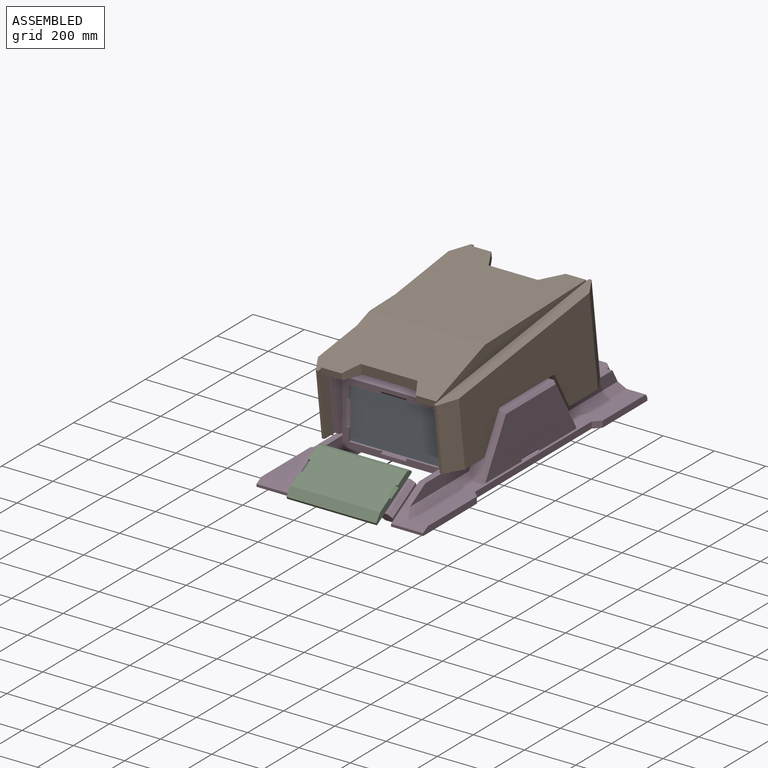
[diagram: assembled view]
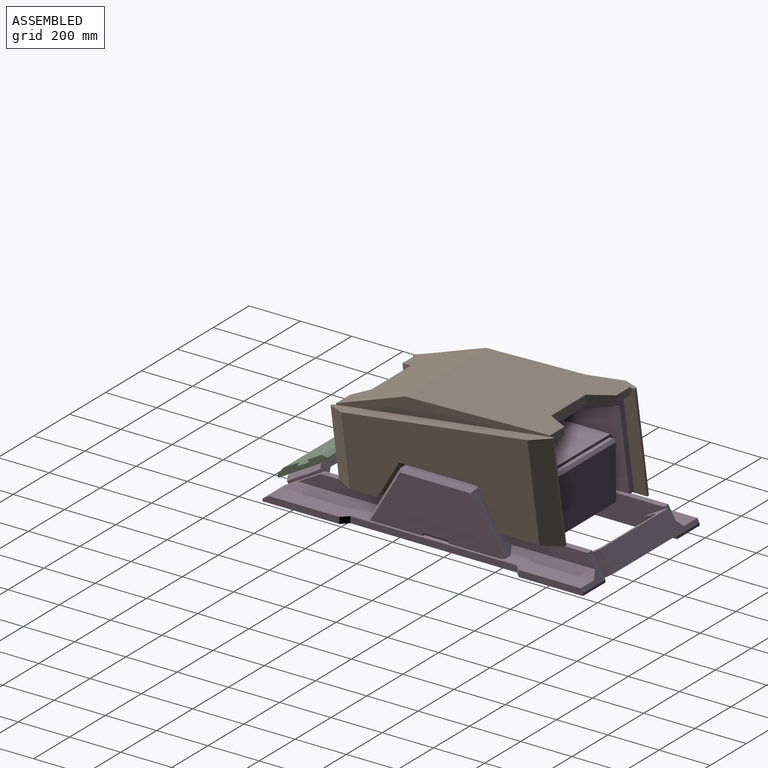
[diagram: assembled view, second angle]
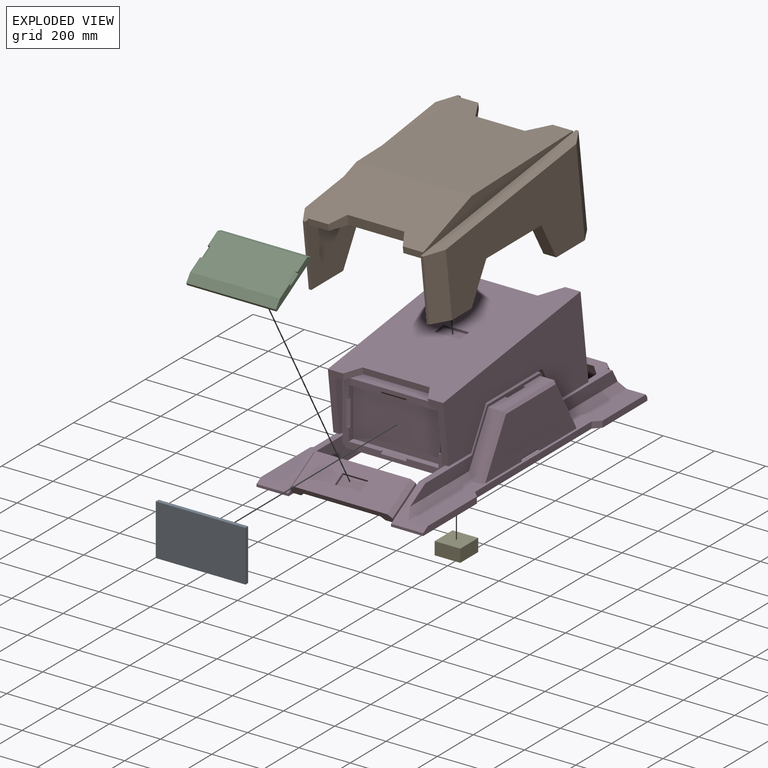
[diagram: exploded view]
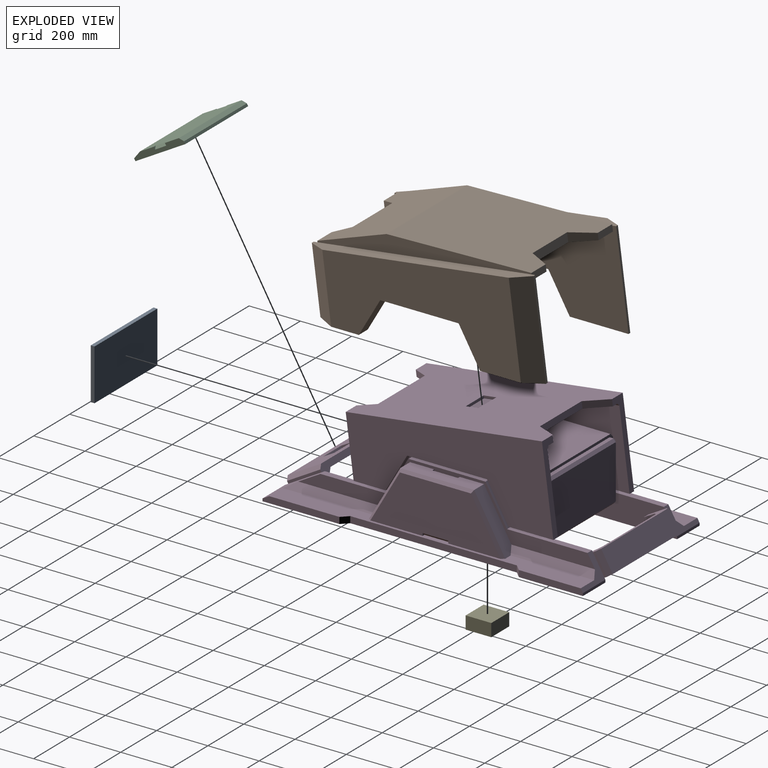
[diagram: exploded view, second angle]
ASSEMBLY  parts=5 mates=4
PART A: 6 faces, bbox 350x15x200 mm
  f0: plane 350x15mm, normal (0,0,1), area 5250mm2, adj f2,f3,f4,f5
  f1: plane 350x15mm, normal (0,0,-1), area 5250mm2, adj f2,f3,f4,f5
  f2: plane 200x15mm, normal (1,0,0), area 3000mm2, adj f0,f1,f3,f4
  f3: plane 350x200mm, normal (0,-1,0), area 70000mm2, adj f0,f1,f2,f5
  f4: plane 350x200mm, normal (0,1,0), area 70000mm2, adj f0,f1,f2,f5
  f5: plane 200x15mm, normal (-1,0,0), area 3000mm2, adj f0,f1,f3,f4
PART B: 44 faces, bbox 550x913.2x370.2 mm
  f0: plane 835.11x450mm, normal (0,0.13,-0.99), area 338181.2mm2, adj f1,f5,f6,f7,f9,f19,f22,f23
  f1: plane 79.79x24.79mm, normal (0,-0.99,-0.13), area 1994.8mm2, adj f0,f3,f8,f19,f25
  f2: plane 565.34x450mm, normal (0,-0.02,1), area 233847.5mm2, adj f3,f8,f9,f22,f23,f27,f29,f42
  f3: plane 835.76x114.9mm, normal (1,0,0), area 29481mm2, adj f1,f2,f8,f9,f10
  f4: plane 100x49.57mm, normal (0,0.13,-0.99), area 5000mm2, adj f5,f6,f7,f28
  f5: plane 100x9.91mm, normal (0,-0.99,-0.13), area 1000mm2, adj f0,f4,f7,f28
  f6: plane 100x9.91mm, normal (0,0.99,0.13), area 1000mm2, adj f0,f4,f7,f28
  f7: plane 50.88x16.44mm, normal (1,0,0), area 500mm2, adj f0,f4,f5,f6
  f8: plane 450x269.77mm, normal (0,-0.34,0.94), area 113165.6mm2, adj f1,f2,f3,f24,f25,f26,f27,f43
  f9: plane 79.79x24.79mm, normal (0,0.99,0.13), area 1994.8mm2, adj f0,f2,f3,f19,f23
  f10: plane 864.85x113.86mm, normal (0,-0.13,0.99), area 40844.4mm2, adj f3,f11,f17,f18,f19,f20,f21
  f11: plane 253.3x33.35mm, normal (0,-0.99,-0.13), area 2554.9mm2, adj f10,f12,f19,f21
  f12: plane 177.66x50mm, normal (0,0,-1), area 7485.4mm2, adj f11,f13,f18,f19,f21
  f13: plane 145x83.72mm, normal (0,0.87,-0.5), area 8371.6mm2, adj f12,f14,f18,f19
  f14: plane 305.77x50mm, normal (0,0,-1), area 15288.7mm2, adj f13,f15,f18,f19
  f15: plane 145x83.72mm, normal (0,-0.87,-0.5), area 8371.6mm2, adj f14,f16,f18,f19
  f16: plane 228.98x50mm, normal (0,0,-1), area 10051.2mm2, adj f15,f17,f18,f19,f20
  f17: plane 367.16x48.34mm, normal (0,0.99,0.13), area 3703.3mm2, adj f10,f16,f19,f20
  f18: plane 774.62x358.12mm, normal (1,0,0), area 173121.5mm2, adj f10,f12,f13,f14,f15,f16,f20,f21
  f19: plane 913.19x367.16mm, normal (-1,0,0), area 199633.2mm2, adj f0,f1,f9,f10,f11,f12,f13,f14
  f20: plane 367.16x117.03mm, normal (0.87,0.5,0.07), area 29261.6mm2, adj f10,f16,f17,f18
  f21: plane 262.35x103.23mm, normal (0.87,-0.5,-0.07), area 20803.9mm2, adj f10,f11,f12,f18
  f22: plane 192.27x33.78mm, normal (0,0.99,0.13), area 6550.4mm2, adj f0,f2,f23,f42
  f23: plane 88.72x49.07mm, normal (-0.87,0.5,0.07), area 2898.8mm2, adj f0,f2,f9,f22
  f24: plane 221.13x37.53mm, normal (0,-0.99,-0.13), area 8371.4mm2, adj f0,f8,f25,f43
  f25: plane 62.75x45.37mm, normal (-0.87,-0.5,-0.07), area 2177.4mm2, adj f0,f1,f8,f24
  f26: plane 79.79x24.79mm, normal (0,-0.99,-0.13), area 1994.8mm2, adj f0,f8,f27,f39,f43
  f27: plane 835.76x114.9mm, normal (-1,0,0), area 29481mm2, adj f2,f8,f26,f29,f30
  f28: plane 50.88x16.44mm, normal (-1,0,0), area 500mm2, adj f0,f4,f5,f6
  f29: plane 79.79x24.79mm, normal (0,0.99,0.13), area 1994.8mm2, adj f0,f2,f27,f39,f42
  f30: plane 864.85x113.86mm, normal (0,-0.13,0.99), area 40844.4mm2, adj f27,f31,f37,f38,f39,f40,f41
  f31: plane 253.3x33.35mm, normal (0,-0.99,-0.13), area 2554.9mm2, adj f30,f32,f39,f41
  f32: plane 177.66x50mm, normal (0,0,-1), area 7485.4mm2, adj f31,f33,f38,f39,f41
  f33: plane 145x83.72mm, normal (0,0.87,-0.5), area 8371.6mm2, adj f32,f34,f38,f39
  f34: plane 305.77x50mm, normal (0,0,-1), area 15288.7mm2, adj f33,f35,f38,f39
  f35: plane 145x83.72mm, normal (0,-0.87,-0.5), area 8371.6mm2, adj f34,f36,f38,f39
  f36: plane 228.98x50mm, normal (0,0,-1), area 10051.2mm2, adj f35,f37,f38,f39,f40
  f37: plane 367.16x48.34mm, normal (0,0.99,0.13), area 3703.3mm2, adj f30,f36,f39,f40
  f38: plane 774.62x358.12mm, normal (-1,0,0), area 173121.5mm2, adj f30,f32,f33,f34,f35,f36,f40,f41
  f39: plane 913.19x367.16mm, normal (1,0,0), area 199633.2mm2, adj f0,f26,f29,f30,f31,f32,f33,f34
  f40: plane 367.16x117.03mm, normal (-0.87,0.5,0.07), area 29261.6mm2, adj f30,f36,f37,f38
  f41: plane 262.35x103.23mm, normal (-0.87,-0.5,-0.07), area 20803.9mm2, adj f30,f31,f32,f38
  f42: plane 88.72x49.07mm, normal (0.87,0.5,0.07), area 2898.8mm2, adj f0,f2,f22,f29
  f43: plane 62.75x45.37mm, normal (0.87,-0.5,-0.07), area 2177.4mm2, adj f0,f8,f24,f26
PART C: 19 faces, bbox 350x199.9x126.7 mm
  f0: plane 199.86x126.65mm, normal (1,0,0), area 4750mm2, adj f5,f6,f7,f8,f9,f10,f11,f12
  f1: plane 100x8.66mm, normal (0,0.87,0.5), area 1000mm2, adj f3,f4,f5,f15
  f2: plane 100x8.66mm, normal (0,-0.87,-0.5), area 1000mm2, adj f3,f4,f5,f15
  f3: plane 48.3x33.66mm, normal (1,0,0), area 500mm2, adj f1,f2,f4,f5
  f4: plane 100x43.3mm, normal (0,0.5,-0.87), area 5000mm2, adj f1,f2,f3,f15
  f5: plane 350x194.86mm, normal (0,0.5,-0.87), area 73750mm2, adj f0,f1,f2,f3,f6,f7,f14,f15
  f6: plane 350x8.66mm, normal (0,0.87,0.5), area 3500mm2, adj f0,f5,f10,f14
  f7: plane 350x8.66mm, normal (0,-0.87,-0.5), area 3500mm2, adj f0,f5,f9,f14
  f8: plane 350x151.55mm, normal (0,-0.5,0.87), area 60250mm2, adj f0,f9,f10,f11,f12,f13,f14,f16
  f9: plane 350x30.49mm, normal (0,-0.8,0.6), area 13327.6mm2, adj f0,f7,f8,f14
  f10: plane 350x20.49mm, normal (0,0.26,0.97), area 7424.6mm2, adj f0,f6,f8,f14
  f11: plane 10x8.66mm, normal (0,0.87,0.5), area 50mm2, adj f0,f8,f13
  f12: plane 10x8.66mm, normal (0,-0.87,-0.5), area 50mm2, adj f0,f8,f13
  f13: plane 48.3x33.66mm, normal (0.71,-0.35,0.61), area 707.1mm2, adj f0,f8,f11,f12
  f14: plane 199.86x126.65mm, normal (-1,0,0), area 4750mm2, adj f5,f6,f7,f8,f9,f10,f16,f17
  f15: plane 48.3x33.66mm, normal (-1,0,0), area 500mm2, adj f1,f2,f4,f5
  f16: plane 10x8.66mm, normal (0,0.87,0.5), area 50mm2, adj f8,f14,f18
  f17: plane 10x8.66mm, normal (0,-0.87,-0.5), area 50mm2, adj f8,f14,f18
  f18: plane 48.3x33.66mm, normal (-0.71,-0.35,0.61), area 707.1mm2, adj f8,f14,f16,f17
PART D: 194 faces, bbox 650x1268.2x445.8 mm
  f0: plane 400x250mm, normal (0,1,0), area 12317.2mm2, adj f7,f11,f15,f22,f23,f24,f59,f105
  f1: plane 400x250mm, normal (0,-1,0), area 25550mm2, adj f2,f7,f11,f15,f22,f23,f24,f56
  f2: plane 200x25mm, normal (-1,0,0), area 4000mm2, adj f1,f56,f57,f58,f98,f99,f103
  f3: plane 765.71x450mm, normal (0,-0.13,0.99), area 300821mm2, adj f9,f65,f66,f68,f69,f70,f71,f94
  f4: plane 400x350mm, normal (0,0,-1), area 128750mm2, adj f78,f79,f80,f81,f82,f86,f87,f88
  f5: plane 250x25mm, normal (1,0,0), area 6185mm2, adj f6,f20,f29,f30,f83
  f6: plane 1250x125mm, normal (0,0,-1), area 139375mm2, adj f5,f15,f18,f19,f29,f83,f84,f85
  f7: plane 700x370mm, normal (0,0,-1), area 120250mm2, adj f0,f1,f23,f78,f79,f80,f81,f82
  f8: plane 507.85x200mm, normal (1,0,0), area 77475.2mm2, adj f20,f53,f54,f55,f72,f73,f77
  f9: plane 335.81x59.59mm, normal (0,0.99,0.13), area 9382.3mm2, adj f3,f10,f59,f64,f66,f67,f69
  f10: plane 765.71x380mm, normal (0,0.13,-0.99), area 251759mm2, adj f9,f65,f67,f68,f69,f70,f71,f120
  f11: plane 700x155mm, normal (1,0,0), area 8674.3mm2, adj f0,f1,f17,f25,f26,f27,f28,f60
  f12: plane 1157.62x195mm, normal (1,0,0), area 38509.6mm2, adj f13,f17,f21,f25,f26,f27,f28,f30
  f13: plane 340.3x25mm, normal (0.71,0,0.71), area 11521.2mm2, adj f12,f20,f30,f50
  f14: plane 87.45x76.47mm, normal (-1,0,0), area 3693.4mm2, adj f42,f43,f44,f46
  f15: plane 1250x100mm, normal (-1,0,0), area 84132.9mm2, adj f0,f1,f6,f17,f19,f23,f28,f29
  f16: plane 139.05x65.85mm, normal (-1,0,0), area 4419.9mm2, adj f32,f33,f34,f47
  f17: plane 314.32x25mm, normal (0,0,1), area 7858.1mm2, adj f11,f12,f15,f25,f30
  f18: plane 300x25mm, normal (1,0,0), area 7305.1mm2, adj f6,f19,f20,f31,f84
  f19: plane 125x10mm, normal (0,-1,0), area 1250mm2, adj f6,f15,f18,f31
  f20: plane 1215.36x75mm, normal (0,0,1), area 54154.8mm2, adj f5,f8,f13,f18,f21,f30,f31,f50
  f21: plane 372.98x25mm, normal (0.71,0,0.71), area 12166.3mm2, adj f12,f20,f31,f51
  f22: plane 700x370mm, normal (0,0,1), area 259000mm2, adj f0,f1,f24,f133
  f23: plane 700x15mm, normal (0.71,0,-0.71), area 14849.2mm2, adj f0,f1,f7,f15
  f24: plane 700x15mm, normal (0.71,0,0.71), area 14849.2mm2, adj f0,f1,f22,f59
  f25: plane 145x83.72mm, normal (0,0.87,0.5), area 4185.8mm2, adj f11,f12,f17,f26
  f26: plane 300x25mm, normal (0,0,1), area 7500mm2, adj f11,f12,f25,f27
  f27: plane 145x83.72mm, normal (0,-0.87,0.5), area 4185.8mm2, adj f11,f12,f26,f28
  f28: plane 260.4x25mm, normal (0,0,1), area 6510mm2, adj f11,f12,f15,f27,f31
  f29: plane 125x10mm, normal (0,1,0), area 1250mm2, adj f5,f6,f15,f30
  f30: plane 125x90mm, normal (0,0.87,0.5), area 4691mm2, adj f5,f12,f13,f15,f17,f20,f29,f39
  f31: plane 155.88x125mm, normal (0,-0.5,0.87), area 8125mm2, adj f12,f15,f18,f19,f20,f21,f28,f37
  f32: plane 400x86.6mm, normal (0,0.87,0.5), area 14150mm2, adj f15,f16,f33,f36,f37,f38,f47,f49
  f33: plane 39.05x25mm, normal (0,0.5,-0.87), area 1127.4mm2, adj f15,f16,f32,f34
  f34: plane 121.13x35.57mm, normal (0,0,-1), area 3140mm2, adj f15,f16,f33,f35,f47
  f35: plane 400x34.15mm, normal (0,-0.87,-0.5), area 11010mm2, adj f15,f34,f36,f37,f38,f47,f49,f125
  f36: plane 370x129.9mm, normal (0,-0.5,0.87), area 50500mm2, adj f32,f35,f49,f90,f91,f92,f150,f181
  f37: plane 134.9x83.66mm, normal (1,0,0), area 1500mm2, adj f31,f32,f35,f49
  f38: plane 300x129.9mm, normal (0,0.5,-0.87), area 45000mm2, adj f32,f35,f47,f148
  f39: plane 82.94x53.66mm, normal (1,0,0), area 900mm2, adj f30,f41,f44,f48
  f40: plane 370x77.94mm, normal (0,0.87,0.5), area 33300mm2, adj f41,f44,f48,f149
  f41: plane 400x40.75mm, normal (0,0.5,-0.87), area 11494.2mm2, adj f15,f39,f40,f42,f45,f46,f48,f125
  f42: plane 61.13x27.94mm, normal (0,0,-1), area 1533.3mm2, adj f14,f15,f41,f43,f46
  f43: plane 51.47x29.72mm, normal (0,-0.87,-0.5), area 1485.8mm2, adj f14,f15,f42,f44
  f44: plane 400x86.6mm, normal (0,-0.5,0.87), area 14150mm2, adj f14,f15,f39,f40,f43,f45,f46,f48
  f45: plane 300x77.94mm, normal (0,-0.87,-0.5), area 27000mm2, adj f41,f44,f46,f147
  f46: plane 88.97x66.65mm, normal (-0.71,-0.61,-0.35), area 3178.4mm2, adj f14,f41,f42,f44,f45
  f47: plane 142.4x87.5mm, normal (-0.71,0.35,-0.61), area 5166.6mm2, adj f16,f32,f34,f35,f38
  f48: plane 85.44x57.99mm, normal (0.71,0.61,0.35), area 1909.2mm2, adj f39,f40,f41,f44
  f49: plane 137.4x87.99mm, normal (0.71,-0.35,0.61), area 3182mm2, adj f32,f35,f36,f37
  f50: plane 210x121.24mm, normal (0,0.87,0.5), area 12975.9mm2, adj f12,f13,f20,f52,f55
  f51: plane 210x121.24mm, normal (0,-0.87,0.5), area 12975.9mm2, adj f12,f20,f21,f52,f53
  f52: plane 288.45x55mm, normal (0,0,1), area 14864.9mm2, adj f12,f50,f51,f54,f74,f75,f76
  f53: plane 210x127.02mm, normal (0.71,-0.61,0.35), area 3347.6mm2, adj f8,f20,f51,f54
  f54: plane 288.45x10mm, normal (0.71,0,0.71), area 3997.7mm2, adj f8,f52,f53,f55
  f55: plane 210x127.02mm, normal (0.71,0.61,0.35), area 3347.6mm2, adj f8,f20,f50,f54
  f56: plane 350x25mm, normal (0,0,-1), area 7750mm2, adj f1,f2,f58,f101,f104,f116,f186
  f57: plane 350x25mm, normal (0,0,1), area 7750mm2, adj f1,f2,f58,f100,f102,f116,f185
  f58: plane 350x200mm, normal (0,-1,0), area 70000mm2, adj f2,f56,f57,f116
  f59: plane 805.35x301.11mm, normal (-1,0,0), area 65792.3mm2, adj f0,f1,f9,f24,f60,f64,f65,f67
  f60: plane 125x25mm, normal (0,0,-1), area 3125mm2, adj f11,f59,f61,f65,f66
  f61: plane 145x83.72mm, normal (0,0.87,-0.5), area 4185.8mm2, adj f11,f60,f62,f66
  f62: plane 311.55x25mm, normal (0,0,-1), area 7788.7mm2, adj f11,f61,f63,f66
  f63: plane 145x83.72mm, normal (0,-0.87,-0.5), area 4185.8mm2, adj f11,f62,f64,f66
  f64: plane 175x25mm, normal (0,0,-1), area 4375mm2, adj f9,f11,f59,f63,f66
  f65: plane 235x59.59mm, normal (0,-0.99,-0.13), area 6840.3mm2, adj f3,f10,f59,f60,f66,f67,f71
  f66: plane 809.92x335.81mm, normal (1,0,0), area 165010.2mm2, adj f3,f9,f60,f61,f62,f63,f64,f65
  f67: plane 767.01x110.72mm, normal (-0.71,0.09,-0.7), area 10922.2mm2, adj f9,f10,f59,f65
  f68: plane 232.68x24.79mm, normal (0,0.99,0.13), area 5817mm2, adj f3,f10,f69,f166
  f69: plane 87.54x49.07mm, normal (-0.87,0.5,0.07), area 2453.7mm2, adj f3,f9,f10,f68
  f70: plane 261.55x24.79mm, normal (0,-0.99,-0.13), area 6538.7mm2, adj f3,f10,f71,f167
  f71: plane 62.75x34.64mm, normal (-0.87,-0.5,-0.07), area 1732.1mm2, adj f3,f10,f65,f70
  f72: plane 10x10mm, normal (0,1,0), area 50mm2, adj f8,f20,f77
  f73: plane 10x10mm, normal (0,-1,0), area 50mm2, adj f8,f20,f77
  f74: plane 10x10mm, normal (0,1,0), area 50mm2, adj f12,f52,f76
  f75: plane 10x10mm, normal (0,-1,0), area 50mm2, adj f12,f52,f76
  f76: plane 100x10mm, normal (-0.71,0,0.71), area 1414.2mm2, adj f12,f52,f74,f75
  f77: plane 100x10mm, normal (0.71,0,-0.71), area 1414.2mm2, adj f8,f20,f72,f73
  f78: plane 300x60mm, normal (0,1,0), area 18000mm2, adj f4,f7,f82,f176
  f79: plane 300x60mm, normal (0,-1,0), area 18000mm2, adj f4,f7,f81,f175
  f80: plane 350x60mm, normal (1,0,0), area 21000mm2, adj f4,f7,f81,f82
  f81: plane 60x25mm, normal (0.71,-0.71,0), area 2121.3mm2, adj f4,f7,f79,f80
  f82: plane 60x25mm, normal (0.71,0.71,0), area 2121.3mm2, adj f4,f7,f78,f80
  f83: plane 25x25mm, normal (0.71,-0.71,0), area 883.9mm2, adj f5,f6,f20,f85
  f84: plane 25x25mm, normal (0.71,0.71,0), area 883.9mm2, adj f6,f18,f20,f85
  f85: plane 650x25mm, normal (1,0,0), area 16250mm2, adj f6,f20,f83,f84
  f86: plane 100x25mm, normal (0,1,0), area 2500mm2, adj f4,f88,f89,f180
  f87: plane 100x25mm, normal (0,-1,0), area 2500mm2, adj f4,f88,f89,f180
  f88: plane 100x25mm, normal (-1,0,0), area 2500mm2, adj f4,f86,f87,f89
  f89: plane 100x100mm, normal (0,0,-1), area 10000mm2, adj f86,f87,f88,f180
  f90: plane 100x8.66mm, normal (0,-0.87,-0.5), area 1000mm2, adj f36,f92,f93,f181
  f91: plane 100x8.66mm, normal (0,0.87,0.5), area 1000mm2, adj f36,f92,f93,f181
  f92: plane 48.3x33.66mm, normal (-1,0,0), area 500mm2, adj f36,f90,f91,f93
  f93: plane 100x43.3mm, normal (0,-0.5,0.87), area 5000mm2, adj f90,f91,f92,f181
  f94: plane 100x9.91mm, normal (0,-0.99,-0.13), area 1000mm2, adj f3,f96,f97,f182
  f95: plane 100x9.91mm, normal (0,0.99,0.13), area 1000mm2, adj f3,f96,f97,f182
  f96: plane 50.88x16.44mm, normal (-1,0,0), area 500mm2, adj f3,f94,f95,f97
  f97: plane 100x49.57mm, normal (0,-0.13,0.99), area 5000mm2, adj f94,f95,f96,f182
  f98: plane 10x10mm, normal (0,0,-1), area 50mm2, adj f1,f2,f103
  f99: plane 10x10mm, normal (0,0,1), area 50mm2, adj f1,f2,f103
  f100: plane 10x10mm, normal (-1,0,0), area 50mm2, adj f1,f57,f102
  f101: plane 10x10mm, normal (-1,0,0), area 50mm2, adj f1,f56,f104
  f102: plane 100x10mm, normal (0,-0.71,0.71), area 1414.2mm2, adj f1,f57,f100,f185
  f103: plane 100x10mm, normal (-0.71,-0.71,0), area 1414.2mm2, adj f1,f2,f98,f99
  f104: plane 100x10mm, normal (0,-0.71,-0.71), area 1414.2mm2, adj f1,f56,f101,f186
  f105: plane 361.72x15mm, normal (0,0,1), area 5425.7mm2, adj f0,f106,f111,f188
  f106: plane 15x9.14mm, normal (0.71,0,0.71), area 193.9mm2, adj f0,f105,f107,f112
  f107: plane 211.72x15mm, normal (1,0,0), area 3175.7mm2, adj f0,f106,f108,f113
  f108: plane 15x9.14mm, normal (0.71,0,-0.71), area 193.9mm2, adj f0,f107,f109,f114
  f109: plane 361.72x15mm, normal (0,0,-1), area 5425.7mm2, adj f0,f108,f115,f190
  f110: plane 360x210mm, normal (0,1,0), area 75578.4mm2, adj f111,f112,f113,f114,f115,f191,f192,f193
  f111: plane 361.72x10mm, normal (0,0.71,0.71), area 5056.9mm2, adj f105,f110,f112,f191
  f112: plane 13.28x13.28mm, normal (0.5,0.71,0.5), area 124.3mm2, adj f106,f110,f111,f113
  f113: plane 211.72x10mm, normal (0.71,0.71,0), area 2935.5mm2, adj f107,f110,f112,f114
  f114: plane 13.28x13.28mm, normal (0.5,0.71,-0.5), area 124.3mm2, adj f108,f110,f113,f115
  f115: plane 361.72x10mm, normal (0,0.71,-0.71), area 5056.9mm2, adj f109,f110,f114,f193
  f116: plane 200x25mm, normal (1,0,0), area 4000mm2, adj f1,f56,f57,f58,f183,f184,f187
  f117: plane 250x25mm, normal (-1,0,0), area 6185mm2, adj f118,f130,f138,f139,f177
  f118: plane 1250x125mm, normal (0,0,-1), area 139375mm2, adj f117,f125,f128,f129,f138,f177,f178,f179
  f119: plane 507.85x200mm, normal (-1,0,0), area 77475.2mm2, adj f130,f154,f155,f156,f168,f169,f173
  f120: plane 335.81x59.59mm, normal (0,0.99,0.13), area 9382.3mm2, adj f3,f10,f157,f162,f164,f165,f166
  f121: plane 700x155mm, normal (-1,0,0), area 8674.3mm2, adj f0,f1,f127,f134,f135,f136,f137,f158
  f122: plane 1157.62x195mm, normal (-1,0,0), area 38509.6mm2, adj f123,f127,f131,f134,f135,f136,f137,f139
  f123: plane 340.3x25mm, normal (-0.71,0,0.71), area 11521.2mm2, adj f122,f130,f139,f151
  f124: plane 87.45x76.47mm, normal (1,0,0), area 3693.4mm2, adj f44,f145,f146,f147
  f125: plane 1250x100mm, normal (1,0,0), area 84132.9mm2, adj f0,f1,f32,f35,f41,f44,f118,f127
  f126: plane 139.05x65.85mm, normal (1,0,0), area 4419.9mm2, adj f32,f141,f142,f148
  f127: plane 314.32x25mm, normal (0,0,1), area 7858.1mm2, adj f121,f122,f125,f134,f139
  f128: plane 300x25mm, normal (-1,0,0), area 7305.1mm2, adj f118,f129,f130,f140,f178
  f129: plane 125x10mm, normal (0,-1,0), area 1250mm2, adj f118,f125,f128,f140
  f130: plane 1215.36x75mm, normal (0,0,1), area 54154.8mm2, adj f117,f119,f123,f128,f131,f139,f140,f151
  f131: plane 372.98x25mm, normal (-0.71,0,0.71), area 12166.3mm2, adj f122,f130,f140,f152
  f132: plane 700x15mm, normal (-0.71,0,-0.71), area 14849.2mm2, adj f0,f1,f7,f125
  f133: plane 700x15mm, normal (-0.71,0,0.71), area 14849.2mm2, adj f0,f1,f22,f157
  f134: plane 145x83.72mm, normal (0,0.87,0.5), area 4185.8mm2, adj f121,f122,f127,f135
  f135: plane 300x25mm, normal (0,0,1), area 7500mm2, adj f121,f122,f134,f136
  f136: plane 145x83.72mm, normal (0,-0.87,0.5), area 4185.8mm2, adj f121,f122,f135,f137
  f137: plane 260.4x25mm, normal (0,0,1), area 6510mm2, adj f121,f122,f125,f136,f140
  f138: plane 125x10mm, normal (0,1,0), area 1250mm2, adj f117,f118,f125,f139
  f139: plane 125x90mm, normal (0,0.87,0.5), area 4691mm2, adj f117,f122,f123,f125,f127,f130,f138,f144
  f140: plane 155.88x125mm, normal (0,-0.5,0.87), area 8125mm2, adj f122,f125,f128,f129,f130,f131,f137,f143
  f141: plane 39.05x25mm, normal (0,0.5,-0.87), area 1127.4mm2, adj f32,f125,f126,f142
  f142: plane 121.13x35.57mm, normal (0,0,-1), area 3140mm2, adj f35,f125,f126,f141,f148
  f143: plane 134.9x83.66mm, normal (-1,0,0), area 1500mm2, adj f32,f35,f140,f150
  f144: plane 82.94x53.66mm, normal (-1,0,0), area 900mm2, adj f41,f44,f139,f149
  f145: plane 61.13x27.94mm, normal (0,0,-1), area 1533.3mm2, adj f41,f124,f125,f146,f147
  f146: plane 51.47x29.72mm, normal (0,-0.87,-0.5), area 1485.8mm2, adj f44,f124,f125,f145
  f147: plane 88.97x66.65mm, normal (0.71,-0.61,-0.35), area 3178.4mm2, adj f41,f44,f45,f124,f145
  f148: plane 142.4x87.5mm, normal (0.71,0.35,-0.61), area 5166.6mm2, adj f32,f35,f38,f126,f142
  f149: plane 85.44x57.99mm, normal (-0.71,0.61,0.35), area 1909.2mm2, adj f40,f41,f44,f144
  f150: plane 137.4x87.99mm, normal (-0.71,-0.35,0.61), area 3182mm2, adj f32,f35,f36,f143
  f151: plane 210x121.24mm, normal (0,0.87,0.5), area 12975.9mm2, adj f122,f123,f130,f153,f156
  f152: plane 210x121.24mm, normal (0,-0.87,0.5), area 12975.9mm2, adj f122,f130,f131,f153,f154
  f153: plane 288.45x55mm, normal (0,0,1), area 14864.9mm2, adj f122,f151,f152,f155,f170,f171,f172
  f154: plane 210x127.02mm, normal (-0.71,-0.61,0.35), area 3347.6mm2, adj f119,f130,f152,f155
  f155: plane 288.45x10mm, normal (-0.71,0,0.71), area 3997.7mm2, adj f119,f153,f154,f156
  f156: plane 210x127.02mm, normal (-0.71,0.61,0.35), area 3347.6mm2, adj f119,f130,f151,f155
  f157: plane 805.35x301.11mm, normal (1,0,0), area 65792.3mm2, adj f0,f1,f120,f133,f158,f162,f163,f165
  f158: plane 125x25mm, normal (0,0,-1), area 3125mm2, adj f121,f157,f159,f163,f164
  f159: plane 145x83.72mm, normal (0,0.87,-0.5), area 4185.8mm2, adj f121,f158,f160,f164
  f160: plane 311.55x25mm, normal (0,0,-1), area 7788.7mm2, adj f121,f159,f161,f164
  f161: plane 145x83.72mm, normal (0,-0.87,-0.5), area 4185.8mm2, adj f121,f160,f162,f164
  f162: plane 175x25mm, normal (0,0,-1), area 4375mm2, adj f120,f121,f157,f161,f164
  f163: plane 235x59.59mm, normal (0,-0.99,-0.13), area 6840.3mm2, adj f3,f10,f157,f158,f164,f165,f167
  f164: plane 809.92x335.81mm, normal (-1,0,0), area 165010.2mm2, adj f3,f120,f158,f159,f160,f161,f162,f163
  f165: plane 767.01x110.72mm, normal (0.71,0.09,-0.7), area 10922.2mm2, adj f10,f120,f157,f163
  f166: plane 87.54x49.07mm, normal (0.87,0.5,0.07), area 2453.7mm2, adj f3,f10,f68,f120
  f167: plane 62.75x34.64mm, normal (0.87,-0.5,-0.07), area 1732.1mm2, adj f3,f10,f70,f163
  f168: plane 10x10mm, normal (0,1,0), area 50mm2, adj f119,f130,f173
  f169: plane 10x10mm, normal (0,-1,0), area 50mm2, adj f119,f130,f173
  f170: plane 10x10mm, normal (0,1,0), area 50mm2, adj f122,f153,f172
  f171: plane 10x10mm, normal (0,-1,0), area 50mm2, adj f122,f153,f172
  f172: plane 100x10mm, normal (0.71,0,0.71), area 1414.2mm2, adj f122,f153,f170,f171
  f173: plane 100x10mm, normal (-0.71,0,-0.71), area 1414.2mm2, adj f119,f130,f168,f169
  f174: plane 350x60mm, normal (-1,0,0), area 21000mm2, adj f4,f7,f175,f176
  f175: plane 60x25mm, normal (-0.71,-0.71,0), area 2121.3mm2, adj f4,f7,f79,f174
  f176: plane 60x25mm, normal (-0.71,0.71,0), area 2121.3mm2, adj f4,f7,f78,f174
  f177: plane 25x25mm, normal (-0.71,-0.71,0), area 883.9mm2, adj f117,f118,f130,f179
  f178: plane 25x25mm, normal (-0.71,0.71,0), area 883.9mm2, adj f118,f128,f130,f179
  f179: plane 650x25mm, normal (-1,0,0), area 16250mm2, adj f118,f130,f177,f178
  f180: plane 100x25mm, normal (1,0,0), area 2500mm2, adj f4,f86,f87,f89
  f181: plane 48.3x33.66mm, normal (1,0,0), area 500mm2, adj f36,f90,f91,f93
  f182: plane 50.88x16.44mm, normal (1,0,0), area 500mm2, adj f3,f94,f95,f97
  f183: plane 10x10mm, normal (0,0,-1), area 50mm2, adj f1,f116,f187
  f184: plane 10x10mm, normal (0,0,1), area 50mm2, adj f1,f116,f187
  f185: plane 10x10mm, normal (1,0,0), area 50mm2, adj f1,f57,f102
  f186: plane 10x10mm, normal (1,0,0), area 50mm2, adj f1,f56,f104
  f187: plane 100x10mm, normal (0.71,-0.71,0), area 1414.2mm2, adj f1,f116,f183,f184
  f188: plane 15x9.14mm, normal (-0.71,0,0.71), area 193.9mm2, adj f0,f105,f189,f191
  f189: plane 211.72x15mm, normal (-1,0,0), area 3175.7mm2, adj f0,f188,f190,f192
  f190: plane 15x9.14mm, normal (-0.71,0,-0.71), area 193.9mm2, adj f0,f109,f189,f193
  f191: plane 13.28x13.28mm, normal (-0.5,0.71,0.5), area 124.3mm2, adj f110,f111,f188,f192
  f192: plane 211.72x10mm, normal (-0.71,0.71,0), area 2935.5mm2, adj f110,f189,f191,f193
  f193: plane 13.28x13.28mm, normal (-0.5,0.71,-0.5), area 124.3mm2, adj f110,f115,f190,f192
PART E: 6 faces, bbox 100x100x50 mm
  f0: plane 100x50mm, normal (0,-1,0), area 5000mm2, adj f1,f3,f4,f5
  f1: plane 100x50mm, normal (-1,0,0), area 5000mm2, adj f0,f2,f4,f5
  f2: plane 100x50mm, normal (0,1,0), area 5000mm2, adj f1,f3,f4,f5
  f3: plane 100x50mm, normal (1,0,0), area 5000mm2, adj f0,f2,f4,f5
  f4: plane 100x100mm, normal (0,0,-1), area 10000mm2, adj f0,f1,f2,f3
  f5: plane 100x100mm, normal (0,0,1), area 10000mm2, adj f0,f1,f2,f3
PLACE A t=(-0.73,-300,-208.75)mm
PLACE B t=(-0.73,-300,-208.75)mm
PLACE C t=(-0.73,-300,-208.75)mm
PLACE D t=(-0.73,-300,-208.75)mm
PLACE E t=(-0.73,-300,-208.75)mm
MATE fastened E.f5 <-> D.f89  axis (0,0,1) through (-0.73,50,-243.75)mm
MATE fastened C.f4 <-> D.f93  axis (0,0.5,-0.87) through (-0.73,-529.56,-200.76)mm
MATE fastened B.f4 <-> D.f97  axis (0,0.13,-0.99) through (-0.73,26.34,115.11)mm
MATE fastened A.f4 <-> D.f58  axis (0,1,0) through (-0.73,-275,-83.75)mm
